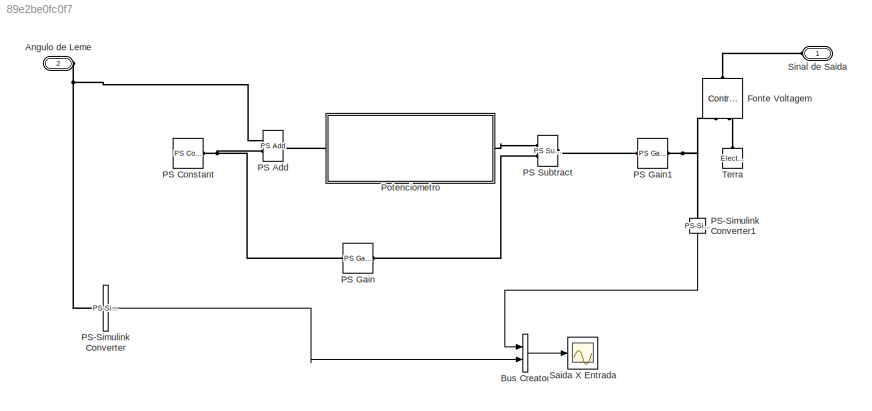
MODEL slx_89e2be0fc0f7
KIND model
CONFIG AbsTol = auto
CONFIG EnableMultiTasking = off
CONFIG FixedStep = auto
CONFIG MaxStep = auto
CONFIG MinStep = auto
CONFIG RelTol = 1e-3
CONFIG SampleTimeConstraint = Unconstrained
CONFIG Solver = VariableStepAuto
CONFIG SolverName = VariableStepAuto
CONFIG StartTime = 0.0
CONFIG StopTime = 10.0
BLOCK [PMIOPort] Angulo de Leme
  Port = 2
  Side = Left
BLOCK [BusCreator] Bus Creator
  DisplayOption = bar
  InheritFromInputs = on
  Inputs = 2
  Ports = [2, 1]
BLOCK [Reference] Fonte Voltagem  REF=fl_lib/Electrical/Electrical Sources/Controlled Voltage
Source
  NameLocation = right
  Ports = [0, 0, 0, 0, 0, 1, 2]
  SourceBlock = fl_lib/Electrical/Electrical Sources/Controlled Voltage\nSource
  SourceType = Controlled Voltage\nSource
BLOCK [Reference] PS Add  REF=fl_lib/Physical Signals/Functions/PS Add
  Ports = [0, 0, 0, 0, 0, 2, 1]
  SourceBlock = fl_lib/Physical Signals/Functions/PS Add
  SourceType = PS Add
BLOCK [Reference] PS Constant  REF=fl_lib/Physical Signals/Sources/PS Constant
  Ports = [0, 0, 0, 0, 0, 0, 1]
  SourceBlock = fl_lib/Physical Signals/Sources/PS Constant
  SourceType = PS Constant
BLOCK [Reference] PS Gain  REF=fl_lib/Physical Signals/Functions/PS Gain
  Ports = [0, 0, 0, 0, 0, 1, 1]
  SourceBlock = fl_lib/Physical Signals/Functions/PS Gain
  SourceType = PS Gain
BLOCK [Reference] PS Gain1  REF=fl_lib/Physical Signals/Functions/PS Gain
  Ports = [0, 0, 0, 0, 0, 1, 1]
  SourceBlock = fl_lib/Physical Signals/Functions/PS Gain
  SourceType = PS Gain
BLOCK [Reference] PS Subtract  REF=fl_lib/Physical Signals/Functions/PS Subtract
  Ports = [0, 0, 0, 0, 0, 2, 1]
  SourceBlock = fl_lib/Physical Signals/Functions/PS Subtract
  SourceType = PS Subtract
BLOCK [Reference] PS-Simulink Converter  REF=nesl_utility/PS-Simulink
Converter
  Ports = [0, 1, 0, 0, 0, 1]
  SourceBlock = nesl_utility/PS-Simulink\nConverter
  SourceType = PS-Simulink\nConverter
BLOCK [Reference] PS-Simulink Converter1  REF=nesl_utility/PS-Simulink
Converter
  NameLocation = left
  Ports = [0, 1, 0, 0, 0, 1]
  SourceBlock = nesl_utility/PS-Simulink\nConverter
  SourceType = PS-Simulink\nConverter
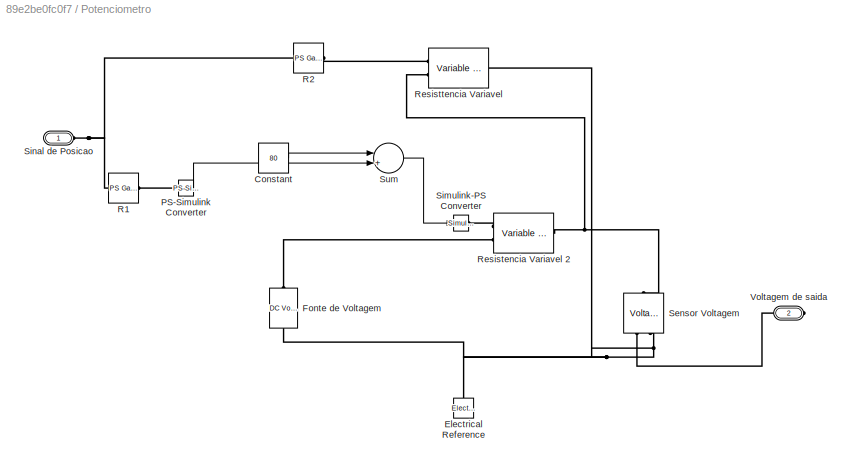
BLOCK [SubSystem] Potenciometro
  Ports = [0, 0, 0, 0, 0, 1, 1]
BLOCK [Reference] Potenciometro/ Fonte de Voltagem  REF=ee_lib/Additional
Components/SPICE Sources/DC Voltage Source
  NameLocation = right
  Ports = [0, 0, 0, 0, 0, 1, 1]
  SourceBlock = ee_lib/Additional\nComponents/SPICE Sources/DC Voltage Source
  SourceType = DC Voltage Source
BLOCK [Constant] Potenciometro/Constant
  Value = 80
BLOCK [Reference] Potenciometro/Electrical Reference  REF=fl_lib/Electrical/Electrical Elements/Electrical Reference
  NameLocation = right
  Ports = [0, 0, 0, 0, 0, 1]
  SourceBlock = fl_lib/Electrical/Electrical Elements/Electrical Reference
  SourceType = Electrical Reference
BLOCK [Reference] Potenciometro/PS-Simulink Converter  REF=nesl_utility/PS-Simulink
Converter
  Ports = [0, 1, 0, 0, 0, 1]
  SourceBlock = nesl_utility/PS-Simulink\nConverter
  SourceType = PS-Simulink\nConverter
BLOCK [Reference] Potenciometro/R1  REF=fl_lib/Physical Signals/Functions/PS Gain
  Ports = [0, 0, 0, 0, 0, 1, 1]
  SourceBlock = fl_lib/Physical Signals/Functions/PS Gain
  SourceType = PS Gain
BLOCK [Reference] Potenciometro/R2  REF=fl_lib/Physical Signals/Functions/PS Gain
  Ports = [0, 0, 0, 0, 0, 1, 1]
  SourceBlock = fl_lib/Physical Signals/Functions/PS Gain
  SourceType = PS Gain
BLOCK [Reference] Potenciometro/Resistencia Variavel 2  REF=fl_lib/Electrical/Electrical Elements/Variable Resistor
  Ports = [0, 0, 0, 0, 0, 2, 1]
  SourceBlock = fl_lib/Electrical/Electrical Elements/Variable Resistor
  SourceType = Variable Resistor
BLOCK [Reference] Potenciometro/Resisttencia Variavel  REF=fl_lib/Electrical/Electrical Elements/Variable Resistor
  Ports = [0, 0, 0, 0, 0, 2, 1]
  SourceBlock = fl_lib/Electrical/Electrical Elements/Variable Resistor
  SourceType = Variable Resistor
BLOCK [Reference] Potenciometro/Sensor Voltagem   REF=fl_lib/Electrical/Electrical Sensors/Voltage Sensor
  NameLocation = right
  Ports = [0, 0, 0, 0, 0, 1, 2]
  SourceBlock = fl_lib/Electrical/Electrical Sensors/Voltage Sensor
  SourceType = Voltage Sensor
BLOCK [Reference] Potenciometro/Simulink-PS Converter  REF=nesl_utility/Simulink-PS
Converter
  Ports = [1, 0, 0, 0, 0, 0, 1]
  SourceBlock = nesl_utility/Simulink-PS\nConverter
  SourceType = Simulink-PS\nConverter
BLOCK [PMIOPort] Potenciometro/Sinal de Posicao
  Side = Left
BLOCK [Sum] Potenciometro/Sum
  Inputs = |+-
  Ports = [2, 1]
BLOCK [PMIOPort] Potenciometro/Voltagem de saida
  Port = 2
  Side = Right
BLOCK [Scope] Saida X Entrada
  Floating = off
  NumInputPorts = 1
  Ports = [1]
  ScopeSpecificationString = Simulink.scopes.TimeScopeBlockCfg('CurrentConfiguration', extmgr.ConfigurationSet(extmgr.Configuration('Core','General UI',true),extmgr.Configuration('Core','Source UI',true),extmgr.Configuration('Sources','WiredSimulink',true),extmgr.Configuration('Visuals','Time Domain',true),extmgr.Configuration('Tools','Plot Navigation',true),extmgr.Configuration('Tools','Measurements',true)),'Version','2022b'...<+1ch>
BLOCK [PMIOPort] Sinal de Saida
  Side = Left
BLOCK [Reference] Terra  REF=fl_lib/Electrical/Electrical Elements/Electrical Reference
  NameLocation = right
  Ports = [0, 0, 0, 0, 0, 1]
  SourceBlock = fl_lib/Electrical/Electrical Elements/Electrical Reference
  SourceType = Electrical Reference
LINE Bus Creator:1 -> Saida X Entrada:1
LINE PS-Simulink Converter1:1 -> Bus Creator:1
LINE PS-Simulink Converter:1 -> Bus Creator:2
LINE Potenciometro/Constant:1 -> Potenciometro/Sum:1
LINE Potenciometro/PS-Simulink Converter:1 -> Potenciometro/Sum:2
LINE Potenciometro/Sum:1 -> Potenciometro/Simulink-PS Converter:1
PNET net1: Angulo de Leme:RConn1 -- PS Add:LConn1 -- PS-Simulink Converter:LConn1
PLINE Fonte Voltagem:LConn1 -- Sinal de Saida:RConn1
PNET net2: Fonte Voltagem:RConn1 -- PS Gain1:RConn1 -- PS-Simulink Converter1:LConn1
PLINE Fonte Voltagem:RConn2 -- Terra:LConn1
PNET net3: PS Add:LConn2 -- PS Constant:RConn1 -- PS Gain:LConn1
PLINE PS Add:RConn1 -- Potenciometro:LConn1
PLINE PS Gain1:LConn1 -- PS Subtract:RConn1
PLINE PS Gain:RConn1 -- PS Subtract:LConn2
PLINE PS Subtract:LConn1 -- Potenciometro:RConn1
PLINE Potenciometro/ Fonte de Voltagem:LConn1 -- Potenciometro/Resistencia Variavel 2:LConn2
PNET net4: Potenciometro/ Fonte de Voltagem:RConn1 -- Potenciometro/Electrical Reference:LConn1 -- Potenciometro/Resisttencia Variavel:RConn1 -- Potenciometro/Sensor Voltagem :RConn2
PLINE Potenciometro/PS-Simulink Converter:LConn1 -- Potenciometro/R1:RConn1
PNET net5: Potenciometro/R1:LConn1 -- Potenciometro/R2:LConn1 -- Potenciometro/Sinal de Posicao:RConn1
PLINE Potenciometro/R2:RConn1 -- Potenciometro/Resisttencia Variavel:LConn1
PLINE Potenciometro/Resistencia Variavel 2:LConn1 -- Potenciometro/Simulink-PS Converter:RConn1
PNET net6: Potenciometro/Resistencia Variavel 2:RConn1 -- Potenciometro/Resisttencia Variavel:LConn2 -- Potenciometro/Sensor Voltagem :LConn1
PLINE Potenciometro/Sensor Voltagem :RConn1 -- Potenciometro/Voltagem de saida:RConn1
note: PNET lines group multi-terminal physical nets as a canonical sorted terminal list (undirected conserving connections); 2-terminal nets keep the pairwise PLINE form
